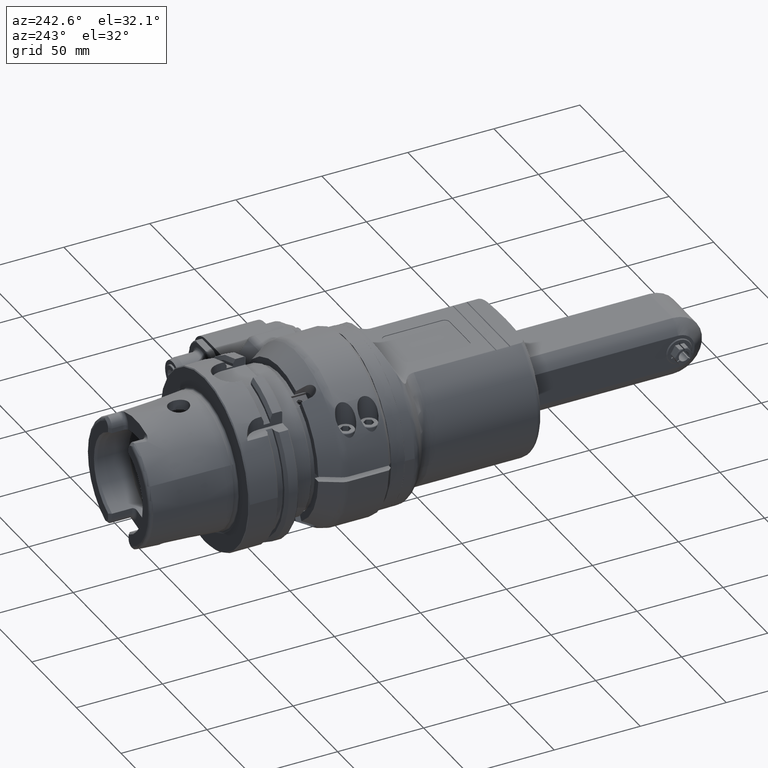
[diagram: clean part render]
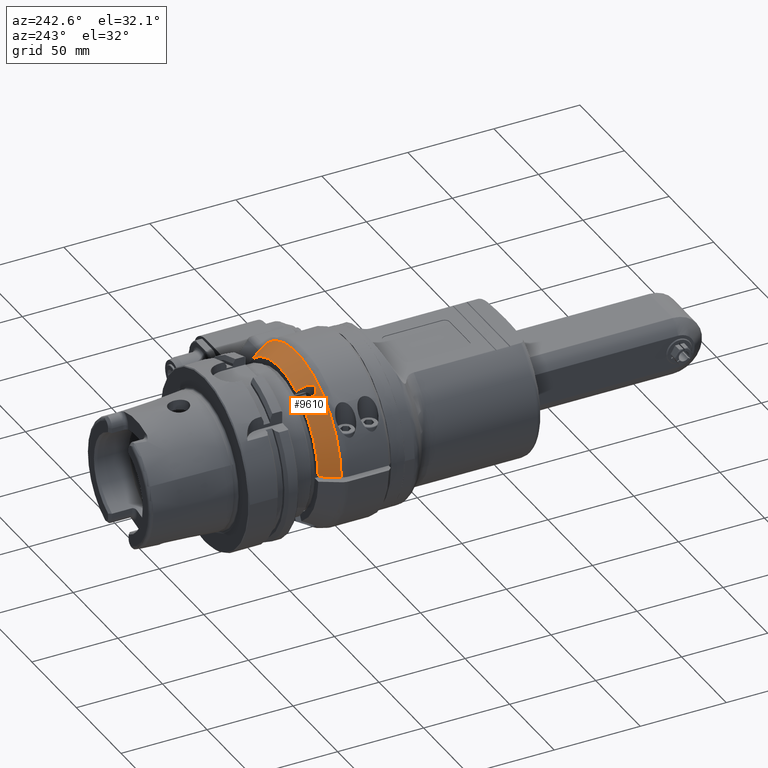
[diagram: same view with one face highlighted and labeled with its STEP entity id]
A machine part, auxiliary view. The second image highlights one B-rep face of the part: STEP entity #9610.
In plain terms, the highlighted conical surface has half-angle 30 deg.
Its self-contained STEP definition (entity closure, byte-faithful):
#163=(
BOUNDED_CURVE()
B_SPLINE_CURVE(2,(#14106,#14107,#14108),.UNSPECIFIED.,.F.,.F.)
B_SPLINE_CURVE_WITH_KNOTS((3,3),(-4.92391023083954,-2.81130786844121),
 .UNSPECIFIED.)
CURVE()
GEOMETRIC_REPRESENTATION_ITEM()
RATIONAL_B_SPLINE_CURVE((1.0074989594549,1.03062027413363,1.03252076511009))
REPRESENTATION_ITEM('')
);
#615=CONICAL_SURFACE('',#10280,46.96410161514,0.523598775598299);
#720=FACE_OUTER_BOUND('',#1309,.T.);
#1309=EDGE_LOOP('',(#6627,#6628,#6629,#6630,#6631,#6632,#6633,#6634));
#1966=CIRCLE('',#10281,49.92820323028);
#1967=CIRCLE('',#10282,44.);
#1968=CIRCLE('',#10283,44.);
#2391=B_SPLINE_CURVE_WITH_KNOTS('',3,(#14373,#14374,#14375,#14376,#14377,
#14378,#14379,#14380,#14381,#14382,#14383,#14384,#14385,#14386,#14387,#14388,
#14389,#14390),.UNSPECIFIED.,.F.,.F.,(4,2,2,2,2,2,2,2,4),(1.11206982951603,
1.24885677734264,1.4029266724495,1.5444028479349,1.68587902342029,1.82735519890569,
1.96883137439109,2.12290126949794,2.25968821731982),.UNSPECIFIED.);
#2393=B_SPLINE_CURVE_WITH_KNOTS('',3,(#14417,#14418,#14419,#14420,#14421,
#14422,#14423,#14424,#14425,#14426),.UNSPECIFIED.,.F.,.F.,(4,3,3,4),(0.,
0.3333333333333,0.6666666666667,1.),.UNSPECIFIED.);
#2395=B_SPLINE_CURVE_WITH_KNOTS('',3,(#14444,#14445,#14446,#14447,#14448,
#14449,#14450,#14451,#14452,#14453),.UNSPECIFIED.,.F.,.F.,(4,3,3,4),(0.,
0.3333333333333,0.6666666666667,1.),.UNSPECIFIED.);
#2396=B_SPLINE_CURVE_WITH_KNOTS('',3,(#14455,#14456,#14457,#14458,#14459,
#14460,#14461,#14462,#14463,#14464),.UNSPECIFIED.,.F.,.F.,(4,3,3,4),(0.,
0.3333333333333,0.6666666666667,1.),.UNSPECIFIED.);
#4026=VERTEX_POINT('',#14103);
#4027=VERTEX_POINT('',#14105);
#4068=VERTEX_POINT('',#14371);
#4069=VERTEX_POINT('',#14372);
#4074=VERTEX_POINT('',#14415);
#4075=VERTEX_POINT('',#14416);
#4078=VERTEX_POINT('',#14442);
#4079=VERTEX_POINT('',#14454);
#5005=EDGE_CURVE('',#4026,#4027,#163,.T.);
#5067=EDGE_CURVE('',#4068,#4069,#2391,.F.);
#5076=EDGE_CURVE('',#4074,#4075,#2393,.T.);
#5081=EDGE_CURVE('',#4027,#4075,#1966,.T.);
#5082=EDGE_CURVE('',#4078,#4026,#1967,.T.);
#5083=EDGE_CURVE('',#4078,#4069,#2395,.T.);
#5084=EDGE_CURVE('',#4068,#4079,#2396,.T.);
#5085=EDGE_CURVE('',#4074,#4079,#1968,.T.);
#6627=ORIENTED_EDGE('',*,*,#5081,.F.);
#6628=ORIENTED_EDGE('',*,*,#5005,.F.);
#6629=ORIENTED_EDGE('',*,*,#5082,.F.);
#6630=ORIENTED_EDGE('',*,*,#5083,.T.);
#6631=ORIENTED_EDGE('',*,*,#5067,.F.);
#6632=ORIENTED_EDGE('',*,*,#5084,.T.);
#6633=ORIENTED_EDGE('',*,*,#5085,.F.);
#6634=ORIENTED_EDGE('',*,*,#5076,.T.);
#9610=ADVANCED_FACE('',(#720),#615,.T.);
#10280=AXIS2_PLACEMENT_3D('',#14440,#11407,#11408);
#10281=AXIS2_PLACEMENT_3D('',#14441,#11409,#11410);
#10282=AXIS2_PLACEMENT_3D('',#14443,#11411,#11412);
#10283=AXIS2_PLACEMENT_3D('',#14465,#11413,#11414);
#11407=DIRECTION('center_axis',(0.,-1.,0.));
#11408=DIRECTION('ref_axis',(-1.,0.,0.));
#11409=DIRECTION('center_axis',(0.,-1.,0.));
#11410=DIRECTION('ref_axis',(0.836200730225418,0.,0.548423503116412));
#11411=DIRECTION('center_axis',(0.,1.,0.));
#11412=DIRECTION('ref_axis',(-0.429527235513105,0.,0.90305390423411));
#11413=DIRECTION('center_axis',(0.,1.,0.));
#11414=DIRECTION('ref_axis',(-0.999418736024773,0.,0.0340909090909091));
#14103=CARTESIAN_POINT('',(41.75,39.5,13.89019438309));
#14105=CARTESIAN_POINT('',(41.75,29.23205080757,27.38180011986));
#14106=CARTESIAN_POINT('Ctrl Pts',(41.75,39.4999999999927,13.8901943831015));
#14107=CARTESIAN_POINT('Ctrl Pts',(41.75,36.0442956678849,20.2102413125831));
#14108=CARTESIAN_POINT('Ctrl Pts',(41.75,29.2320508075673,27.3818001198562));
#14371=CARTESIAN_POINT('',(-26.40905638146,34.49999999996,38.74182743265));
#14372=CARTESIAN_POINT('',(-20.34687855495,34.5,42.24182743261));
#14373=CARTESIAN_POINT('Ctrl Pts',(-20.3468785549539,34.5000000000022,42.2418274326121));
#14374=CARTESIAN_POINT('Ctrl Pts',(-20.4629008008145,34.0992085079171,42.4427838572514));
#14375=CARTESIAN_POINT('Ctrl Pts',(-20.6496060415951,33.6780271021369,42.6229397461814));
#14376=CARTESIAN_POINT('Ctrl Pts',(-21.1765134567461,32.8336229766582,42.9080443216851));
#14377=CARTESIAN_POINT('Ctrl Pts',(-21.5338827677997,32.416786404141,43.000036123302));
#14378=CARTESIAN_POINT('Ctrl Pts',(-22.2748250788787,31.7689100689263,43.0423244163336));
#14379=CARTESIAN_POINT('Ctrl Pts',(-22.7012115036421,31.4858969585476,43.0050112903121));
#14380=CARTESIAN_POINT('Ctrl Pts',(-23.5864558934365,31.1011571537055,42.779754686541));
#14381=CARTESIAN_POINT('Ctrl Pts',(-24.0453321040545,31.,42.5909113923236));
#14382=CARTESIAN_POINT('Ctrl Pts',(-24.8621451840586,31.,42.1193241407056));
#14383=CARTESIAN_POINT('Ctrl Pts',(-25.2551263794943,31.1011571537054,41.8163473322267));
#14384=CARTESIAN_POINT('Ctrl Pts',(-25.8928265156274,31.4858969585476,41.1623315039927));
#14385=CARTESIAN_POINT('Ctrl Pts',(-26.1383338430383,31.7689100689263,40.8117265913295));
#14386=CARTESIAN_POINT('Ctrl Pts',(-26.4721822625297,32.416786404141,40.1489075806805));
#14387=CARTESIAN_POINT('Ctrl Pts',(-26.5711996809163,32.8336229766582,39.7934207779667));
#14388=CARTESIAN_POINT('Ctrl Pts',(-26.5877455833702,33.6780271021231,39.1945532832615));
#14389=CARTESIAN_POINT('Ctrl Pts',(-26.5250786273105,34.0992085078879,38.9427838572684));
#14390=CARTESIAN_POINT('Ctrl Pts',(-26.409056381457,34.4999999999605,38.7418274326329));
#14415=CARTESIAN_POINT('',(-43.97442438509,39.5,1.5));
#14416=CARTESIAN_POINT('',(-49.9056612221311,29.2320587089715,1.50000006858959));
#14417=CARTESIAN_POINT('Ctrl Pts',(-43.97442438509,39.5,1.5));
#14418=CARTESIAN_POINT('Ctrl Pts',(-44.63349239584,38.3591242554,1.5));
#14419=CARTESIAN_POINT('Ctrl Pts',(-45.2925454352499,37.2182445912652,1.5));
#14420=CARTESIAN_POINT('Ctrl Pts',(-45.9515842405682,36.0773635402228,1.5));
#14421=CARTESIAN_POINT('Ctrl Pts',(-46.6106230458866,34.9364824891801,1.5));
#14422=CARTESIAN_POINT('Ctrl Pts',(-47.2696476171134,33.7956000512299,1.5));
#14423=CARTESIAN_POINT('Ctrl Pts',(-47.9286620207944,32.6547122553372,1.5));
#14424=CARTESIAN_POINT('Ctrl Pts',(-48.5876764244751,31.5138244594448,1.5));
#14425=CARTESIAN_POINT('Ctrl Pts',(-49.24668066061,30.37293130561,1.5));
#14426=CARTESIAN_POINT('Ctrl Pts',(-49.90565666041,29.23206660847,1.5));
#14440=CARTESIAN_POINT('Origin',(0.,34.36602540378,0.));
#14441=CARTESIAN_POINT('Origin',(0.,29.23205080757,0.));
#14442=CARTESIAN_POINT('',(-18.89919836257,39.5,39.7343717863));
#14443=CARTESIAN_POINT('Origin',(0.,39.5,0.));
#14444=CARTESIAN_POINT('Ctrl Pts',(-18.8991983625711,39.5000000000014,39.7343717863022));
#14445=CARTESIAN_POINT('Ctrl Pts',(-19.0600803989624,38.9444542650933,40.0130276473551));
#14446=CARTESIAN_POINT('Ctrl Pts',(-19.2209523393287,38.388904658883,40.2916660666116));
#14447=CARTESIAN_POINT('Ctrl Pts',(-19.3818147452656,37.8333517949314,40.5702879469609));
#14448=CARTESIAN_POINT('Ctrl Pts',(-19.5426771512026,37.2777989309796,40.8489098273103));
#14449=CARTESIAN_POINT('Ctrl Pts',(-19.7035300221847,36.7222428089151,41.12751516829));
#14450=CARTESIAN_POINT('Ctrl Pts',(-19.8643738399584,36.1666839961689,41.4061048113134));
#14451=CARTESIAN_POINT('Ctrl Pts',(-20.0252176577319,35.6111251834229,41.6846944543368));
#14452=CARTESIAN_POINT('Ctrl Pts',(-20.186052421901,35.0555636796713,41.963268398972));
#14453=CARTESIAN_POINT('Ctrl Pts',(-20.3468785549516,34.5000000000021,42.2418274326133));
#14454=CARTESIAN_POINT('',(-24.96137618907,39.5,36.2343717863));
#14455=CARTESIAN_POINT('Ctrl Pts',(-26.4090563814534,34.4999999999533,38.7418274326404));
#14456=CARTESIAN_POINT('Ctrl Pts',(-26.2482302483957,35.0555636796356,38.4632683989937));
#14457=CARTESIAN_POINT('Ctrl Pts',(-26.0873955175853,35.6111251834248,38.1846944350734));
#14458=CARTESIAN_POINT('Ctrl Pts',(-25.9265517183778,36.1666839961872,37.9061047813199));
#14459=CARTESIAN_POINT('Ctrl Pts',(-25.7657079191702,36.7222428089498,37.6275151275664));
#14460=CARTESIAN_POINT('Ctrl Pts',(-25.6048550517416,37.2777989310094,37.3489097845386));
#14461=CARTESIAN_POINT('Ctrl Pts',(-25.4439926282768,37.8333517949564,37.0702879143124));
#14462=CARTESIAN_POINT('Ctrl Pts',(-25.283130204812,38.3889046589031,36.7916660440862));
#14463=CARTESIAN_POINT('Ctrl Pts',(-25.1222582254486,38.9444542651086,36.5130276473481));
#14464=CARTESIAN_POINT('Ctrl Pts',(-24.9613761890659,39.4999999999959,36.2343717863041));
#14465=CARTESIAN_POINT('Origin',(0.,39.5,0.));